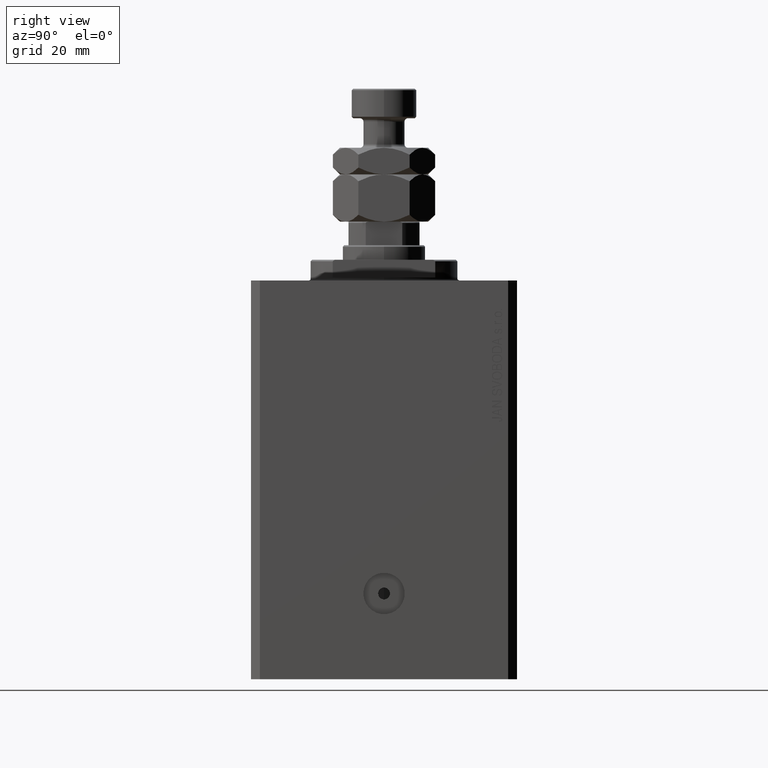
[diagram: clean part render]
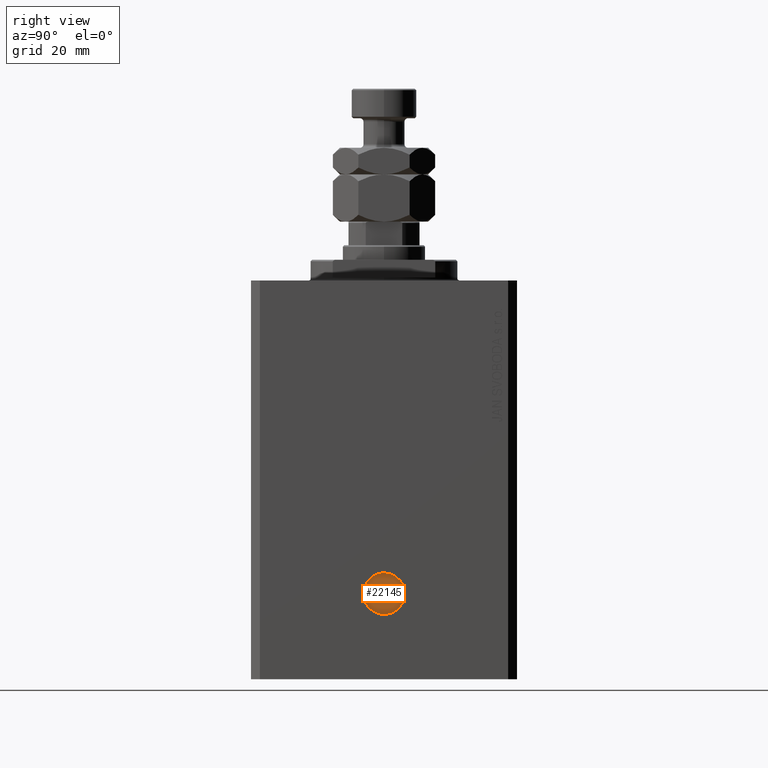
[diagram: same view with one face highlighted and labeled with its STEP entity id]
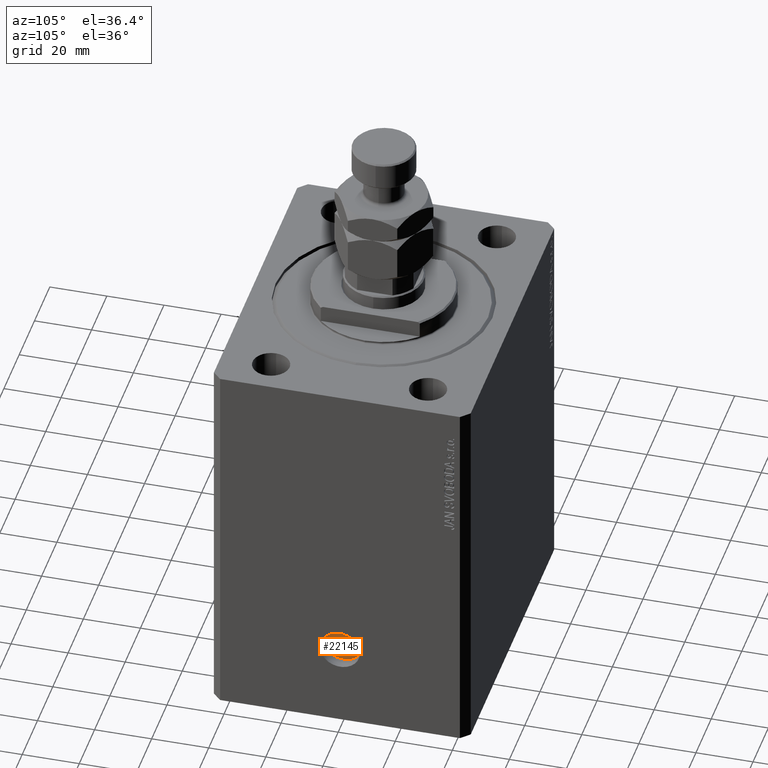
[diagram: same view with one face highlighted and labeled with its STEP entity id]
A machine part, right view. The second image highlights one B-rep face of the part: STEP entity #22145.
A second angle (auxiliary view) of the same face is appended — the face is thin or edge-on in the first view.
In plain terms, the highlighted planar face has unit normal (1, -0, 0).
Its self-contained STEP definition (entity closure, byte-faithful):
#220 = VERTEX_POINT ( 'NONE', #5157 ) ;
#322 = CARTESIAN_POINT ( 'NONE',  ( 53.00000000000028422, 1.058943836159465236E-13, -106.0000000000000142 ) ) ;
#373 = VERTEX_POINT ( 'NONE', #21326 ) ;
#789 = DIRECTION ( 'NONE',  ( 1.288651725011342390E-14, 1.000000000000000000, 0.000000000000000000 ) ) ;
#2436 = CARTESIAN_POINT ( 'NONE',  ( 53.00000000000028422, 1.058943836159465236E-13, -106.0000000000000142 ) ) ;
#2662 = CIRCLE ( 'NONE', #18415, 1.999999999999996225 ) ;
#2957 = AXIS2_PLACEMENT_3D ( 'NONE', #322, #43368, #789 ) ;
#4580 = FACE_BOUND ( 'NONE', #12998, .T. ) ;
#5157 = CARTESIAN_POINT ( 'NONE',  ( 53.00000000000019185, -6.999999999999894307, -106.0000000000000142 ) ) ;
#7111 = CIRCLE ( 'NONE', #25165, 1.999999999999996225 ) ;
#7752 = DIRECTION ( 'NONE',  ( 1.387778780781448358E-14, 1.000000000000000000, 0.000000000000000000 ) ) ;
#9309 = EDGE_CURVE ( 'NONE', #373, #220, #18257, .T. ) ;
#10009 = ORIENTED_EDGE ( 'NONE', *, *, #38659, .F. ) ;
#11157 = ORIENTED_EDGE ( 'NONE', *, *, #26136, .T. ) ;
#11189 = CIRCLE ( 'NONE', #2957, 7.000000000000000000 ) ;
#12099 = ORIENTED_EDGE ( 'NONE', *, *, #9309, .T. ) ;
#12998 = EDGE_LOOP ( 'NONE', ( #10009, #35736 ) ) ;
#13255 = AXIS2_PLACEMENT_3D ( 'NONE', #15836, #43417, #39920 ) ;
#14835 = DIRECTION ( 'NONE',  ( 1.000000000000000000, -1.334402673828349134E-14, 0.000000000000000000 ) ) ;
#14836 = VERTEX_POINT ( 'NONE', #43396 ) ;
#15836 = CARTESIAN_POINT ( 'NONE',  ( 53.00000000000028422, 1.058943836159465236E-13, -106.0000000000000142 ) ) ;
#17878 = DIRECTION ( 'NONE',  ( 1.000000000000000000, -1.334402673828349134E-14, 0.000000000000000000 ) ) ;
#18257 = CIRCLE ( 'NONE', #44346, 7.000000000000000000 ) ;
#18415 = AXIS2_PLACEMENT_3D ( 'NONE', #39828, #14835, #7752 ) ;
#18890 = PLANE ( 'NONE',  #13255 ) ;
#21326 = CARTESIAN_POINT ( 'NONE',  ( 53.00000000000037659, 7.000000000000105693, -106.0000000000000142 ) ) ;
#22145 = ADVANCED_FACE ( 'NONE', ( #4580, #29626 ), #18890, .T. ) ;
#24750 = VERTEX_POINT ( 'NONE', #44211 ) ;
#25165 = AXIS2_PLACEMENT_3D ( 'NONE', #32332, #17878, #42635 ) ;
#26136 = EDGE_CURVE ( 'NONE', #220, #373, #11189, .T. ) ;
#29626 = FACE_OUTER_BOUND ( 'NONE', #29740, .T. ) ;
#29740 = EDGE_LOOP ( 'NONE', ( #12099, #11157 ) ) ;
#32332 = CARTESIAN_POINT ( 'NONE',  ( 53.00000000000028422, 1.058943836159465236E-13, -106.0000000000000142 ) ) ;
#35736 = ORIENTED_EDGE ( 'NONE', *, *, #37629, .F. ) ;
#37543 = DIRECTION ( 'NONE',  ( 1.000000000000000000, -1.334402673828349134E-14, 0.000000000000000000 ) ) ;
#37629 = EDGE_CURVE ( 'NONE', #14836, #24750, #7111, .T. ) ;
#38659 = EDGE_CURVE ( 'NONE', #24750, #14836, #2662, .T. ) ;
#39828 = CARTESIAN_POINT ( 'NONE',  ( 53.00000000000028422, 1.058943836159465236E-13, -106.0000000000000142 ) ) ;
#39920 = DIRECTION ( 'NONE',  ( 1.334402673828349134E-14, 1.000000000000000000, 0.000000000000000000 ) ) ;
#42635 = DIRECTION ( 'NONE',  ( 1.387778780781448358E-14, 1.000000000000000000, 0.000000000000000000 ) ) ;
#43368 = DIRECTION ( 'NONE',  ( 1.000000000000000000, -1.334402673828349134E-14, 0.000000000000000000 ) ) ;
#43396 = CARTESIAN_POINT ( 'NONE',  ( 53.00000000000025580, -1.999999999999890310, -106.0000000000000142 ) ) ;
#43417 = DIRECTION ( 'NONE',  ( 1.000000000000000000, -1.334402673828349134E-14, 0.000000000000000000 ) ) ;
#44211 = CARTESIAN_POINT ( 'NONE',  ( 53.00000000000031264, 2.000000000000102141, -106.0000000000000142 ) ) ;
#44346 = AXIS2_PLACEMENT_3D ( 'NONE', #2436, #37543, #45033 ) ;
#45033 = DIRECTION ( 'NONE',  ( 1.288651725011342390E-14, 1.000000000000000000, 0.000000000000000000 ) ) ;